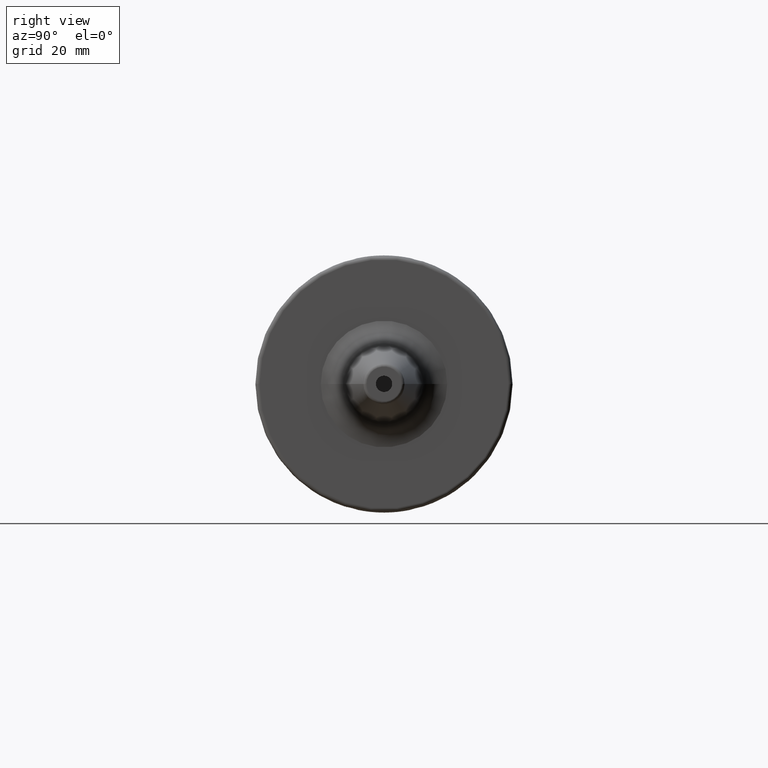
[diagram: clean part render]
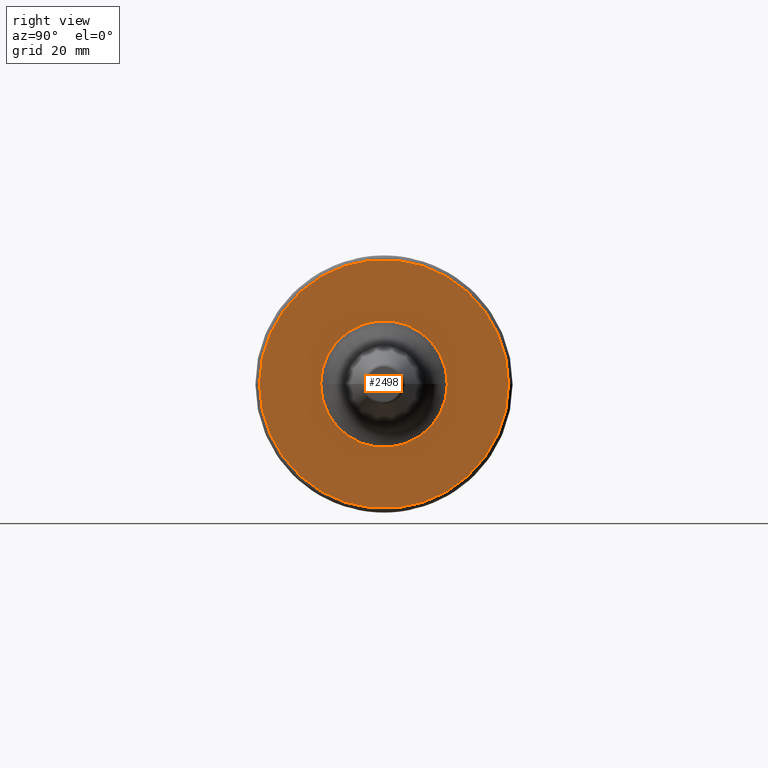
[diagram: same view with one face highlighted and labeled with its STEP entity id]
A machine part, right view. The second image highlights one B-rep face of the part: STEP entity #2498.
In plain terms, the highlighted planar face has unit normal (1, 0, 0).
Its self-contained STEP definition (entity closure, byte-faithful):
#816=CARTESIAN_POINT('',(2.7E1,0.E0,0.E0));
#817=DIRECTION('',(1.E0,0.E0,0.E0));
#818=DIRECTION('',(0.E0,1.E0,0.E0));
#819=AXIS2_PLACEMENT_3D('',#816,#817,#818);
#831=CARTESIAN_POINT('',(2.7E1,0.E0,0.E0));
#832=DIRECTION('',(-1.E0,0.E0,0.E0));
#833=DIRECTION('',(0.E0,1.E0,0.E0));
#834=AXIS2_PLACEMENT_3D('',#831,#832,#833);
#836=CARTESIAN_POINT('',(2.7E1,0.E0,0.E0));
#837=DIRECTION('',(1.E0,0.E0,0.E0));
#838=DIRECTION('',(0.E0,-1.E0,0.E0));
#839=AXIS2_PLACEMENT_3D('',#836,#837,#838);
#841=CARTESIAN_POINT('',(2.7E1,0.E0,0.E0));
#842=DIRECTION('',(1.E0,0.E0,0.E0));
#843=DIRECTION('',(0.E0,1.E0,0.E0));
#844=AXIS2_PLACEMENT_3D('',#841,#842,#843);
#1286=CARTESIAN_POINT('',(2.7E1,3.04875E1,0.E0));
#1287=VERTEX_POINT('',#1286);
#1288=CARTESIAN_POINT('',(2.7E1,-3.04875E1,0.E0));
#1289=VERTEX_POINT('',#1288);
#1383=CARTESIAN_POINT('',(2.7E1,-1.550455047990E1,-1.622998340522E-14));
#1384=CARTESIAN_POINT('',(2.7E1,1.550455047990E1,1.433122359348E-14));
#1385=VERTEX_POINT('',#1383);
#1386=VERTEX_POINT('',#1384);
#2483=CARTESIAN_POINT('',(2.7E1,0.E0,0.E0));
#2484=DIRECTION('',(1.E0,0.E0,0.E0));
#2485=DIRECTION('',(0.E0,-1.E0,0.E0));
#2486=AXIS2_PLACEMENT_3D('',#2483,#2484,#2485);
#2487=PLANE('',#2486);
#2488=ORIENTED_EDGE('',*,*,#2478,.T.);
#2489=ORIENTED_EDGE('',*,*,#2462,.F.);
#2490=EDGE_LOOP('',(#2488,#2489));
#2491=FACE_OUTER_BOUND('',#2490,.F.);
#2493=ORIENTED_EDGE('',*,*,#2492,.T.);
#2495=ORIENTED_EDGE('',*,*,#2494,.T.);
#2496=EDGE_LOOP('',(#2493,#2495));
#2497=FACE_BOUND('',#2496,.F.);
#2498=ADVANCED_FACE('',(#2491,#2497),#2487,.T.);
#820=CIRCLE('',#819,3.04875E1);
#835=CIRCLE('',#834,3.04875E1);
#840=CIRCLE('',#839,1.550455047990E1);
#845=CIRCLE('',#844,1.550455047990E1);
#2462=EDGE_CURVE('',#1287,#1289,#820,.T.);
#2478=EDGE_CURVE('',#1287,#1289,#835,.T.);
#2492=EDGE_CURVE('',#1385,#1386,#840,.T.);
#2494=EDGE_CURVE('',#1386,#1385,#845,.T.);